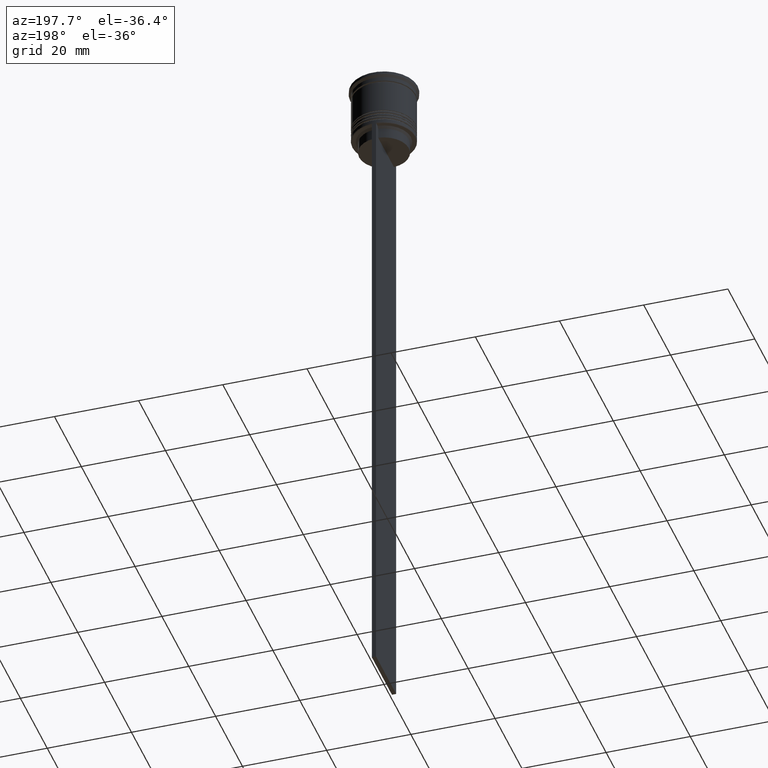
[diagram: clean part render]
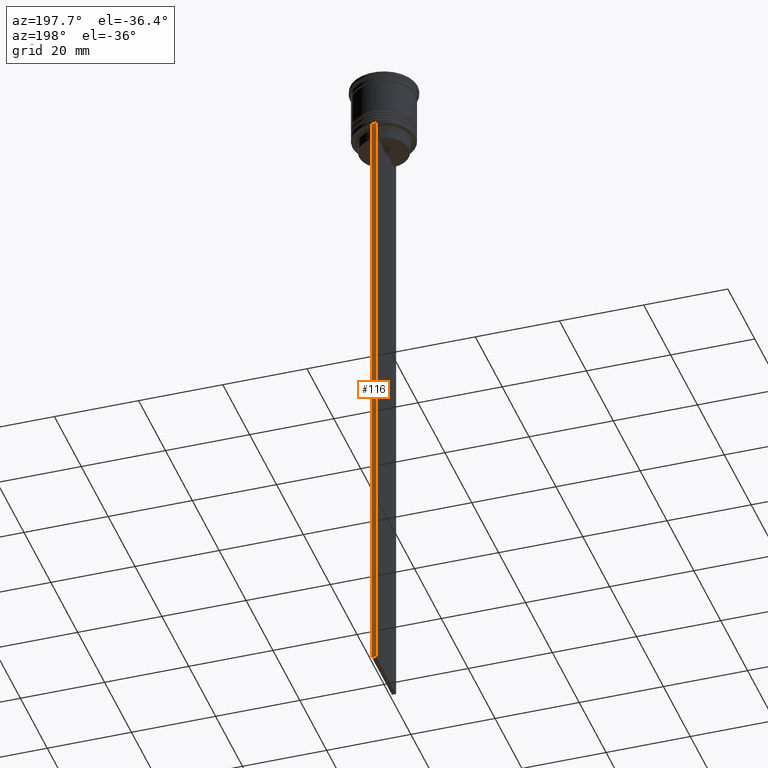
[diagram: same view with one face highlighted and labeled with its STEP entity id]
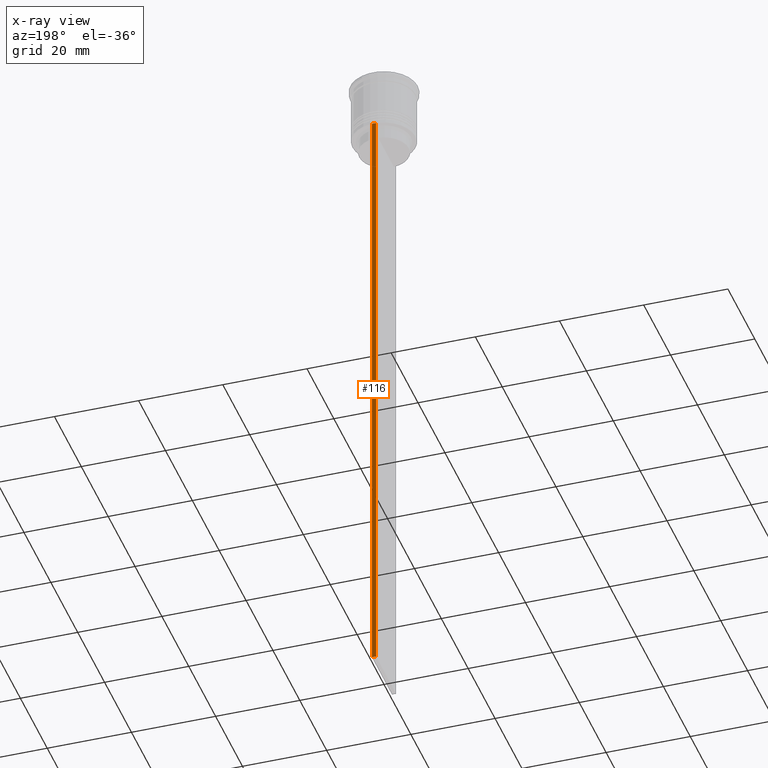
[diagram: x-ray of the same camera — body ghosted, the highlighted face saturated]
A machine part, auxiliary view. The second image highlights one B-rep face of the part: STEP entity #116.
The next image is the same camera in x-ray: the body ghosted, the highlighted face saturated — about 0% of this face is hidden behind the body in this view.
In plain terms, the highlighted planar face has unit normal (0, -1, -0).
Its self-contained STEP definition (entity closure, byte-faithful):
#58 = EDGE_CURVE ( 'NONE', #2360, #944, #1775, .T. ) ;
#116 = ADVANCED_FACE ( 'NONE', ( #1973 ), #1026, .F. ) ;
#214 = CARTESIAN_POINT ( 'NONE',  ( 0.5000000000000000000, 7.500000000000002665, 1.033296378372908997 ) ) ;
#229 = DIRECTION ( 'NONE',  ( 0.000000000000000000, 0.000000000000000000, -1.000000000000000000 ) ) ;
#234 = EDGE_CURVE ( 'NONE', #1624, #825, #1654, .T. ) ;
#339 = VECTOR ( 'NONE', #1070, 1000.000000000000000 ) ;
#352 = EDGE_CURVE ( 'NONE', #1624, #2360, #1336, .T. ) ;
#519 = CARTESIAN_POINT ( 'NONE',  ( 0.5000000000000000000, 7.500000000000002665, -14.00000000000000178 ) ) ;
#650 = DIRECTION ( 'NONE',  ( 0.000000000000000000, -1.000000000000000000, -0.000000000000000000 ) ) ;
#716 = ORIENTED_EDGE ( 'NONE', *, *, #58, .T. ) ;
#724 = CARTESIAN_POINT ( 'NONE',  ( -0.5000000000000000000, 7.500000000000002665, 1.033296378372908997 ) ) ;
#825 = VERTEX_POINT ( 'NONE', #1103 ) ;
#852 = DIRECTION ( 'NONE',  ( 0.000000000000000000, 0.000000000000000000, -1.000000000000000000 ) ) ;
#934 = ORIENTED_EDGE ( 'NONE', *, *, #1178, .T. ) ;
#944 = VERTEX_POINT ( 'NONE', #1350 ) ;
#976 = ORIENTED_EDGE ( 'NONE', *, *, #352, .T. ) ;
#1026 = PLANE ( 'NONE',  #2493 ) ;
#1070 = DIRECTION ( 'NONE',  ( 0.000000000000000000, 0.000000000000000000, -1.000000000000000000 ) ) ;
#1103 = CARTESIAN_POINT ( 'NONE',  ( -0.5000000000000000000, 7.500000000000002665, -163.9999999999999716 ) ) ;
#1178 = EDGE_CURVE ( 'NONE', #944, #825, #1203, .T. ) ;
#1187 = CARTESIAN_POINT ( 'NONE',  ( 0.5000000000000000000, 7.500000000000002665, 1.033296378372908997 ) ) ;
#1203 = LINE ( 'NONE', #1995, #2336 ) ;
#1336 = LINE ( 'NONE', #519, #1539 ) ;
#1350 = CARTESIAN_POINT ( 'NONE',  ( 0.5000000000000000000, 7.500000000000002665, -163.9999999999999716 ) ) ;
#1539 = VECTOR ( 'NONE', #1841, 1000.000000000000000 ) ;
#1624 = VERTEX_POINT ( 'NONE', #2362 ) ;
#1654 = LINE ( 'NONE', #724, #339 ) ;
#1695 = ORIENTED_EDGE ( 'NONE', *, *, #234, .F. ) ;
#1775 = LINE ( 'NONE', #214, #2093 ) ;
#1810 = CARTESIAN_POINT ( 'NONE',  ( 0.5000000000000000000, 7.500000000000002665, -14.00000000000000178 ) ) ;
#1841 = DIRECTION ( 'NONE',  ( 1.000000000000000000, 0.000000000000000000, 0.000000000000000000 ) ) ;
#1973 = FACE_OUTER_BOUND ( 'NONE', #2204, .T. ) ;
#1995 = CARTESIAN_POINT ( 'NONE',  ( 0.5000000000000000000, 7.500000000000002665, -163.9999999999999716 ) ) ;
#2093 = VECTOR ( 'NONE', #852, 1000.000000000000000 ) ;
#2204 = EDGE_LOOP ( 'NONE', ( #1695, #976, #716, #934 ) ) ;
#2336 = VECTOR ( 'NONE', #2367, 1000.000000000000000 ) ;
#2360 = VERTEX_POINT ( 'NONE', #1810 ) ;
#2362 = CARTESIAN_POINT ( 'NONE',  ( -0.5000000000000000000, 7.500000000000002665, -14.00000000000000178 ) ) ;
#2367 = DIRECTION ( 'NONE',  ( -1.000000000000000000, 0.000000000000000000, 0.000000000000000000 ) ) ;
#2493 = AXIS2_PLACEMENT_3D ( 'NONE', #1187, #650, #229 ) ;